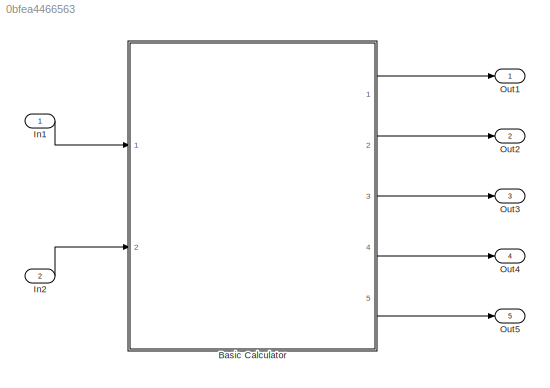
MODEL slx_0bfea4466563
KIND model
CONFIG AbsTol = auto
CONFIG EnableMultiTasking = off
CONFIG FixedStep = auto
CONFIG MaxStep = auto
CONFIG MinStep = auto
CONFIG RelTol = 1e-3
CONFIG SampleTimeConstraint = Unconstrained
CONFIG Solver = VariableStepAuto
CONFIG SolverName = VariableStepAuto
CONFIG StartTime = 0.0
CONFIG StopTime = 10.0
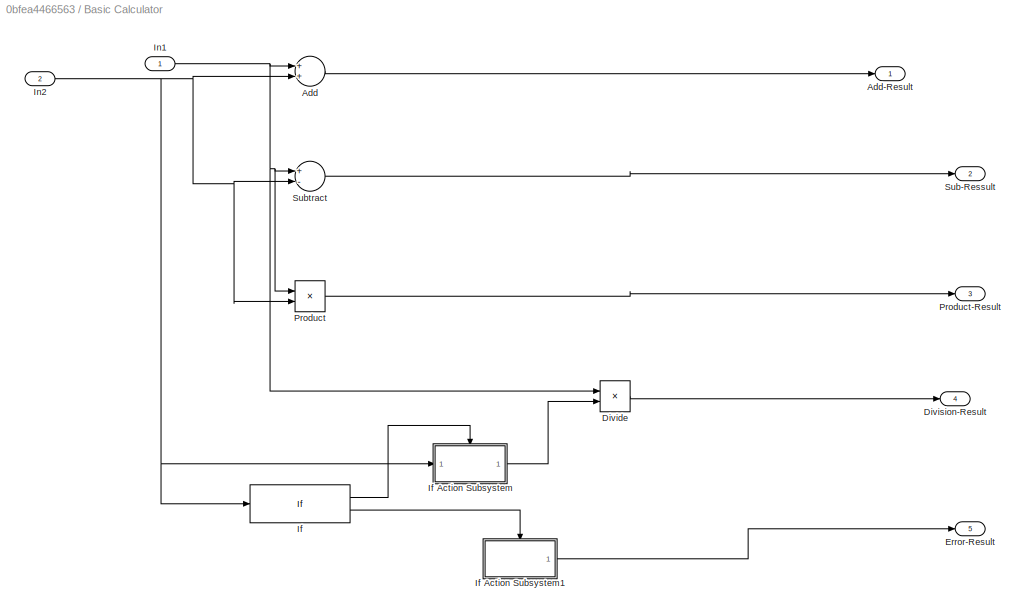
BLOCK [SubSystem] Basic Calculator
  MinAlgLoopOccurrences = on
  Ports = [2, 5]
  RTWFcnNameOpts = Use subsystem name
  RTWSystemCode = Reusable function
  RequestExecContextInheritance = off
  TreatAsAtomicUnit = on
BLOCK [Sum] Basic Calculator/Add
  InputSameDT = off
  OutDataTypeStr = Inherit: Inherit via internal rule
  Ports = [2, 1]
  SaturateOnIntegerOverflow = off
BLOCK [Outport] Basic Calculator/Add-Result
  IconDisplay = Port number
BLOCK [Product] Basic Calculator/Divide
  InputSameDT = off
  Inputs = */
  OutDataTypeStr = Inherit: Inherit via internal rule
  Ports = [2, 1]
  RndMeth = Floor
  SaturateOnIntegerOverflow = off
BLOCK [Outport] Basic Calculator/Division-Result
  IconDisplay = Port number
  Port = 4
BLOCK [Outport] Basic Calculator/Error-Result 
  IconDisplay = Port number
  Port = 5
BLOCK [If] Basic Calculator/If
  Ports = [1, 2]
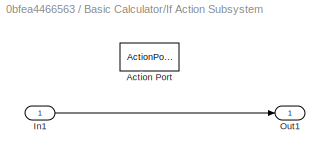
BLOCK [SubSystem] Basic Calculator/If Action Subsystem
  Ports = [1, 1, 0, 0, 0, 0, 0, 1]
  RequestExecContextInheritance = off
  TreatAsAtomicUnit = on
BLOCK [ActionPort] Basic Calculator/If Action Subsystem/Action Port
  ActionType = then
BLOCK [Inport] Basic Calculator/If Action Subsystem/In1
  IconDisplay = Port number
BLOCK [Outport] Basic Calculator/If Action Subsystem/Out1
  IconDisplay = Port number
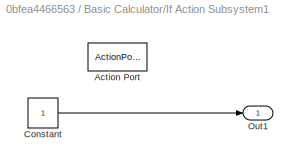
BLOCK [SubSystem] Basic Calculator/If Action Subsystem1
  Ports = [0, 1, 0, 0, 0, 0, 0, 1]
  RequestExecContextInheritance = off
  TreatAsAtomicUnit = on
BLOCK [ActionPort] Basic Calculator/If Action Subsystem1/Action Port
  ActionType = else
BLOCK [Constant] Basic Calculator/If Action Subsystem1/Constant
  OutDataTypeStr = uint8
BLOCK [Outport] Basic Calculator/If Action Subsystem1/Out1
  IconDisplay = Port number
BLOCK [Inport] Basic Calculator/In1
  IconDisplay = Port number
BLOCK [Inport] Basic Calculator/In2
  IconDisplay = Port number
  Port = 2
BLOCK [Product] Basic Calculator/Product
  InputSameDT = off
  OutDataTypeStr = Inherit: Inherit via internal rule
  Ports = [2, 1]
  RndMeth = Floor
  SaturateOnIntegerOverflow = off
BLOCK [Outport] Basic Calculator/Product-Result
  IconDisplay = Port number
  Port = 3
BLOCK [Outport] Basic Calculator/Sub-Ressult
  IconDisplay = Port number
  Port = 2
BLOCK [Sum] Basic Calculator/Subtract
  InputSameDT = off
  Inputs = +-
  OutDataTypeStr = Inherit: Inherit via internal rule
  Ports = [2, 1]
  SaturateOnIntegerOverflow = off
BLOCK [Inport] In1
  IconDisplay = Port number
BLOCK [Inport] In2
  IconDisplay = Port number
  Port = 2
BLOCK [Outport] Out1
  IconDisplay = Port number
BLOCK [Outport] Out2
  IconDisplay = Port number
  Port = 2
BLOCK [Outport] Out3
  IconDisplay = Port number
  Port = 3
BLOCK [Outport] Out4
  IconDisplay = Port number
  Port = 4
BLOCK [Outport] Out5
  IconDisplay = Port number
  Port = 5
LINE Basic Calculator/Add:1 -> Basic Calculator/Add-Result:1
LINE Basic Calculator/Divide:1 -> Basic Calculator/Division-Result:1
LINE Basic Calculator/If Action Subsystem/In1:1 -> Basic Calculator/If Action Subsystem/Out1:1
LINE Basic Calculator/If Action Subsystem1/Constant:1 -> Basic Calculator/If Action Subsystem1/Out1:1
LINE Basic Calculator/If Action Subsystem1:1 -> Basic Calculator/Error-Result :1
LINE Basic Calculator/If Action Subsystem:1 -> Basic Calculator/Divide:2
LINE Basic Calculator/If:1 -> Basic Calculator/If Action Subsystem:ifaction
LINE Basic Calculator/If:2 -> Basic Calculator/If Action Subsystem1:ifaction
NET Basic Calculator/In1:1 -> Basic Calculator/Add:1, Basic Calculator/Divide:1, Basic Calculator/Product:1, Basic Calculator/Subtract:1
NET Basic Calculator/In2:1 -> Basic Calculator/Add:2, Basic Calculator/If Action Subsystem:1, Basic Calculator/If:1, Basic Calculator/Product:2, Basic Calculator/Subtract:2
LINE Basic Calculator/Product:1 -> Basic Calculator/Product-Result:1
LINE Basic Calculator/Subtract:1 -> Basic Calculator/Sub-Ressult:1
LINE Basic Calculator:1 -> Out1:1
LINE Basic Calculator:2 -> Out2:1
LINE Basic Calculator:3 -> Out3:1
LINE Basic Calculator:4 -> Out4:1
LINE Basic Calculator:5 -> Out5:1
LINE In1:1 -> Basic Calculator:1
LINE In2:1 -> Basic Calculator:2
note: NET lines group one-source signal fan-out (src -> all destinations, sorted); 1:1 wires keep LINE
